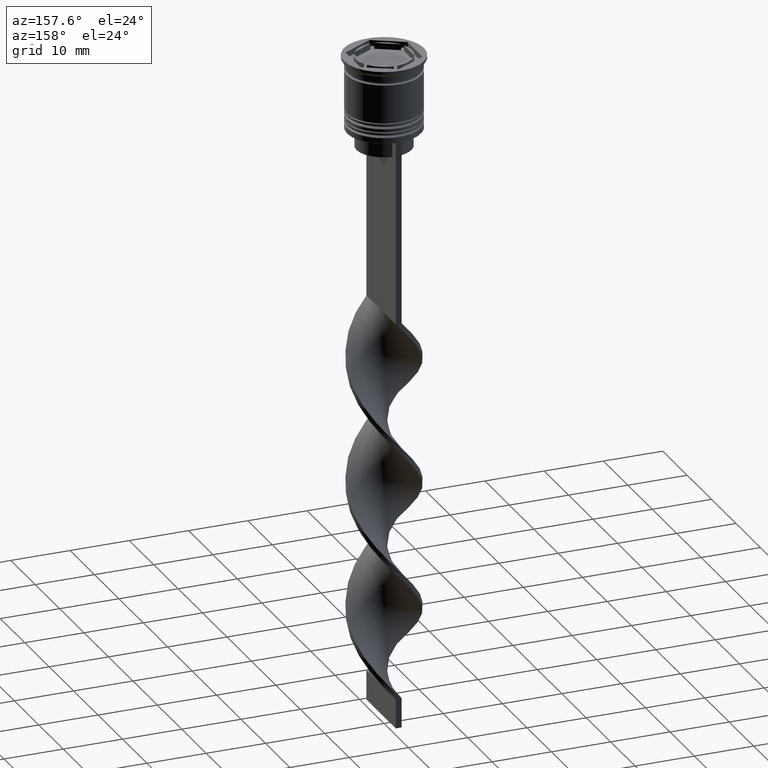
[diagram: clean part render]
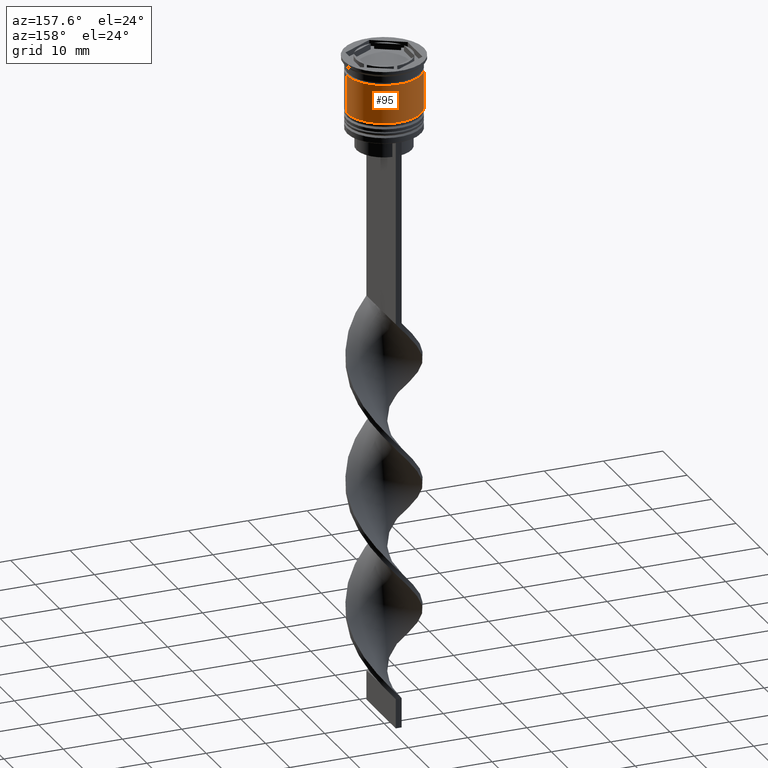
[diagram: same view with one face highlighted and labeled with its STEP entity id]
A machine part, auxiliary view. The second image highlights one B-rep face of the part: STEP entity #95.
In plain terms, the highlighted cylindrical surface (partial cylindrical patch) has radius 6.25 mm, axis along (-0, -0, 1).
Its self-contained STEP definition (entity closure, byte-faithful):
#95 = ADVANCED_FACE ( 'NONE', ( #2924 ), #485, .T. ) ;
#243 = VERTEX_POINT ( 'NONE', #1653 ) ;
#254 = CARTESIAN_POINT ( 'NONE',  ( 0.000000000000000000, 0.000000000000000000, -9.000000000000001776 ) ) ;
#431 = DIRECTION ( 'NONE',  ( 1.000000000000000000, 0.000000000000000000, 0.000000000000000000 ) ) ;
#485 = CYLINDRICAL_SURFACE ( 'NONE', #3333, 6.250000000000000000 ) ;
#505 = EDGE_CURVE ( 'NONE', #2074, #2729, #1803, .T. ) ;
#515 = LINE ( 'NONE', #2734, #622 ) ;
#622 = VECTOR ( 'NONE', #1617, 1000.000000000000000 ) ;
#674 = AXIS2_PLACEMENT_3D ( 'NONE', #2916, #1255, #761 ) ;
#760 = CARTESIAN_POINT ( 'NONE',  ( 0.000000000000000000, 0.000000000000000000, 0.000000000000000000 ) ) ;
#761 = DIRECTION ( 'NONE',  ( 1.000000000000000000, 0.000000000000000000, 0.000000000000000000 ) ) ;
#944 = LINE ( 'NONE', #3429, #2431 ) ;
#951 = VERTEX_POINT ( 'NONE', #2425 ) ;
#997 = DIRECTION ( 'NONE',  ( -0.000000000000000000, -0.000000000000000000, 1.000000000000000000 ) ) ;
#1174 = ORIENTED_EDGE ( 'NONE', *, *, #2847, .F. ) ;
#1255 = DIRECTION ( 'NONE',  ( -0.000000000000000000, -0.000000000000000000, 1.000000000000000000 ) ) ;
#1476 = EDGE_CURVE ( 'NONE', #243, #951, #3397, .T. ) ;
#1617 = DIRECTION ( 'NONE',  ( -0.000000000000000000, -0.000000000000000000, 1.000000000000000000 ) ) ;
#1653 = CARTESIAN_POINT ( 'NONE',  ( 6.250000000000000888, 0.000000000000000000, -9.000000000000001776 ) ) ;
#1662 = EDGE_LOOP ( 'NONE', ( #2289, #2653, #3465, #1174 ) ) ;
#1803 = CIRCLE ( 'NONE', #674, 6.249999999999999112 ) ;
#2074 = VERTEX_POINT ( 'NONE', #2642 ) ;
#2289 = ORIENTED_EDGE ( 'NONE', *, *, #1476, .T. ) ;
#2355 = DIRECTION ( 'NONE',  ( -0.000000000000000000, -0.000000000000000000, 1.000000000000000000 ) ) ;
#2425 = CARTESIAN_POINT ( 'NONE',  ( -6.250000000000001776, 7.654042494670959579E-16, -9.000000000000001776 ) ) ;
#2431 = VECTOR ( 'NONE', #997, 1000.000000000000000 ) ;
#2540 = EDGE_CURVE ( 'NONE', #951, #2729, #944, .T. ) ;
#2611 = AXIS2_PLACEMENT_3D ( 'NONE', #254, #2355, #3198 ) ;
#2642 = CARTESIAN_POINT ( 'NONE',  ( 6.249999999999999112, 0.000000000000000000, -2.500000000000000444 ) ) ;
#2653 = ORIENTED_EDGE ( 'NONE', *, *, #2540, .T. ) ;
#2729 = VERTEX_POINT ( 'NONE', #3034 ) ;
#2734 = CARTESIAN_POINT ( 'NONE',  ( 6.250000000000000000, 0.000000000000000000, 0.000000000000000000 ) ) ;
#2847 = EDGE_CURVE ( 'NONE', #243, #2074, #515, .T. ) ;
#2916 = CARTESIAN_POINT ( 'NONE',  ( 0.000000000000000000, 0.000000000000000000, -2.500000000000000444 ) ) ;
#2924 = FACE_OUTER_BOUND ( 'NONE', #1662, .T. ) ;
#3034 = CARTESIAN_POINT ( 'NONE',  ( -6.249999999999999112, 7.654042494670956620E-16, -2.500000000000000444 ) ) ;
#3198 = DIRECTION ( 'NONE',  ( 1.000000000000000000, 0.000000000000000000, 0.000000000000000000 ) ) ;
#3333 = AXIS2_PLACEMENT_3D ( 'NONE', #760, #3432, #431 ) ;
#3397 = CIRCLE ( 'NONE', #2611, 6.250000000000000888 ) ;
#3429 = CARTESIAN_POINT ( 'NONE',  ( -6.250000000000000000, 7.654042494670957606E-16, 0.000000000000000000 ) ) ;
#3432 = DIRECTION ( 'NONE',  ( -0.000000000000000000, -0.000000000000000000, 1.000000000000000000 ) ) ;
#3465 = ORIENTED_EDGE ( 'NONE', *, *, #505, .F. ) ;